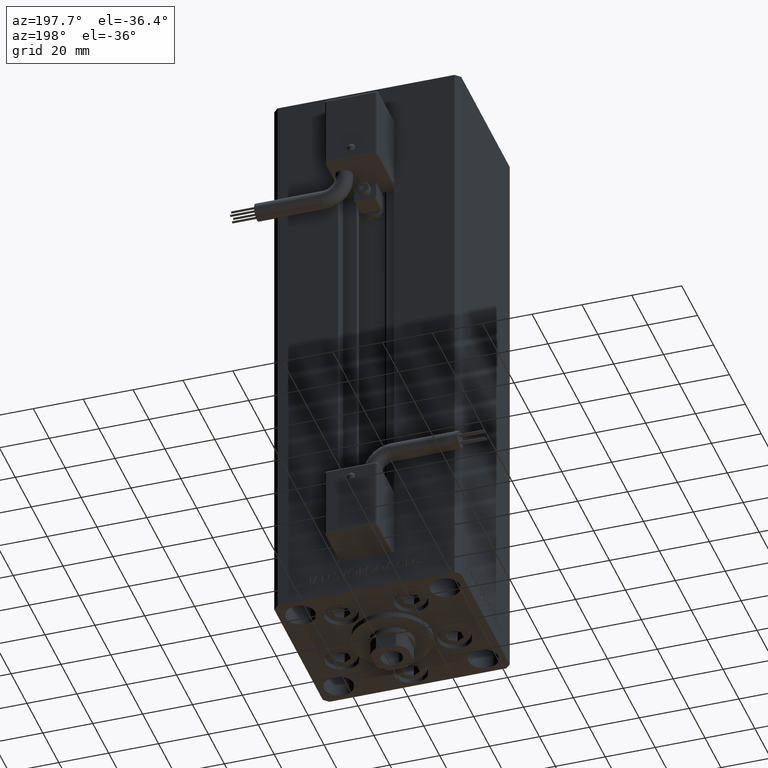
[diagram: clean part render]
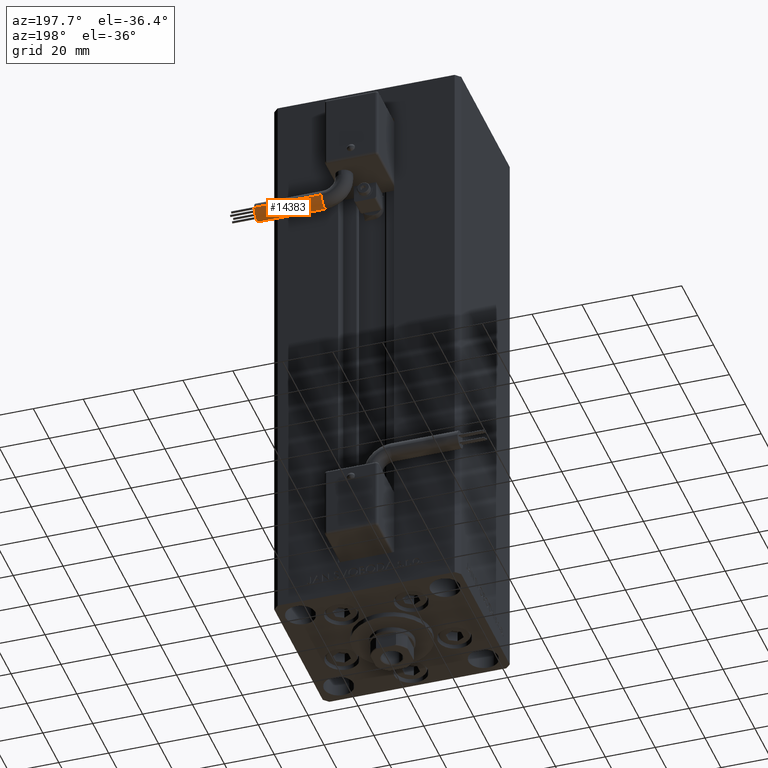
[diagram: same view with one face highlighted and labeled with its STEP entity id]
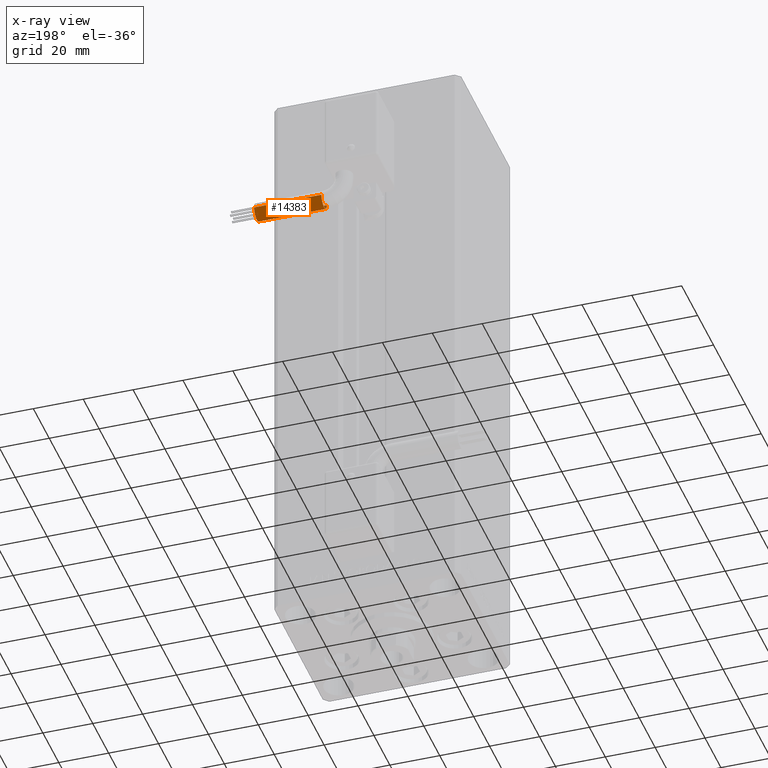
[diagram: x-ray of the same camera — body ghosted, the highlighted face saturated]
A machine part, auxiliary view. The second image highlights one B-rep face of the part: STEP entity #14383.
The next image is the same camera in x-ray: the body ghosted, the highlighted face saturated — about 0% of this face is hidden behind the body in this view.
In plain terms, the highlighted cylindrical surface (edge-blend (fillet) strip) has radius 3.5 mm, axis along (1, -0, 0).
Its self-contained STEP definition (entity closure, byte-faithful):
#903 = AXIS2_PLACEMENT_3D ( 'NONE', #41122, #33244, #33501 ) ;
#1173 = CYLINDRICAL_SURFACE ( 'NONE', #903, 3.500000000000003109 ) ;
#1744 = EDGE_CURVE ( 'NONE', #36859, #8098, #23438, .T. ) ;
#1753 = VERTEX_POINT ( 'NONE', #28463 ) ;
#3100 = CARTESIAN_POINT ( 'NONE',  ( 40.80000000000000426, 42.00000000000000000, -65.00000000000000000 ) ) ;
#3152 = EDGE_CURVE ( 'NONE', #8098, #49429, #31881, .T. ) ;
#8098 = VERTEX_POINT ( 'NONE', #14462 ) ;
#9558 = FACE_OUTER_BOUND ( 'NONE', #35245, .T. ) ;
#9949 = ORIENTED_EDGE ( 'NONE', *, *, #13145, .F. ) ;
#10799 = DIRECTION ( 'NONE',  ( 1.000000000000000000, -2.599999999999999847E-16, 2.220446049250000002E-16 ) ) ;
#13145 = EDGE_CURVE ( 'NONE', #1753, #24258, #27741, .T. ) ;
#13696 = CARTESIAN_POINT ( 'NONE',  ( 13.79999999999999716, 38.50000000000000000, -65.00000000000000000 ) ) ;
#13783 = VECTOR ( 'NONE', #10799, 1000.000000000000000 ) ;
#14274 = CARTESIAN_POINT ( 'NONE',  ( 40.80000000000000426, 45.50000000000000711, -65.00000000000000000 ) ) ;
#14383 = ADVANCED_FACE ( 'NONE', ( #9558 ), #1173, .T. ) ;
#14462 = CARTESIAN_POINT ( 'NONE',  ( 13.79999999999999893, 42.00000000000000000, -68.50000000000000000 ) ) ;
#16698 = ORIENTED_EDGE ( 'NONE', *, *, #3152, .T. ) ;
#19129 = DIRECTION ( 'NONE',  ( 0.000000000000000000, 0.000000000000000000, -1.000000000000000000 ) ) ;
#23438 = CIRCLE ( 'NONE', #30103, 3.500000000000003109 ) ;
#23721 = DIRECTION ( 'NONE',  ( 1.000000000000000000, -2.599999999999999847E-16, 2.220446049250000002E-16 ) ) ;
#24058 = CARTESIAN_POINT ( 'NONE',  ( 13.79999999999999893, 38.50000000000000000, -65.00000000000000000 ) ) ;
#24258 = VERTEX_POINT ( 'NONE', #14274 ) ;
#24988 = DIRECTION ( 'NONE',  ( 0.000000000000000000, 0.000000000000000000, -1.000000000000000000 ) ) ;
#27741 = CIRCLE ( 'NONE', #31069, 3.500000000000003109 ) ;
#28463 = CARTESIAN_POINT ( 'NONE',  ( 40.80000000000000426, 38.50000000000000000, -65.00000000000000000 ) ) ;
#30103 = AXIS2_PLACEMENT_3D ( 'NONE', #31368, #47377, #35829 ) ;
#30738 = ORIENTED_EDGE ( 'NONE', *, *, #1744, .T. ) ;
#31069 = AXIS2_PLACEMENT_3D ( 'NONE', #3100, #47240, #19129 ) ;
#31368 = CARTESIAN_POINT ( 'NONE',  ( 13.79999999999999893, 42.00000000000000000, -65.00000000000000000 ) ) ;
#31881 = CIRCLE ( 'NONE', #34393, 3.500000000000003109 ) ;
#33244 = DIRECTION ( 'NONE',  ( 1.000000000000000000, -2.599999999999999847E-16, 2.220446049250000002E-16 ) ) ;
#33501 = DIRECTION ( 'NONE',  ( -4.956352788505158337E-16, -1.000000000000000000, 0.000000000000000000 ) ) ;
#34393 = AXIS2_PLACEMENT_3D ( 'NONE', #49392, #41775, #24988 ) ;
#35245 = EDGE_LOOP ( 'NONE', ( #30738, #16698, #36365, #9949, #48900 ) ) ;
#35829 = DIRECTION ( 'NONE',  ( 0.000000000000000000, 0.000000000000000000, -1.000000000000000000 ) ) ;
#35945 = EDGE_CURVE ( 'NONE', #49429, #24258, #39481, .T. ) ;
#36365 = ORIENTED_EDGE ( 'NONE', *, *, #35945, .T. ) ;
#36859 = VERTEX_POINT ( 'NONE', #24058 ) ;
#38055 = EDGE_CURVE ( 'NONE', #36859, #1753, #46547, .T. ) ;
#39481 = LINE ( 'NONE', #47878, #48978 ) ;
#41122 = CARTESIAN_POINT ( 'NONE',  ( 13.79999999999999893, 42.00000000000000000, -65.00000000000000000 ) ) ;
#41775 = DIRECTION ( 'NONE',  ( 1.000000000000000000, 0.000000000000000000, 2.220446049250000002E-16 ) ) ;
#46547 = LINE ( 'NONE', #13696, #13783 ) ;
#47240 = DIRECTION ( 'NONE',  ( 1.000000000000000000, 0.000000000000000000, 2.220446049250000002E-16 ) ) ;
#47377 = DIRECTION ( 'NONE',  ( 1.000000000000000000, 0.000000000000000000, 2.220446049250000002E-16 ) ) ;
#47878 = CARTESIAN_POINT ( 'NONE',  ( 13.80000000000000071, 45.50000000000000711, -65.00000000000000000 ) ) ;
#48368 = CARTESIAN_POINT ( 'NONE',  ( 13.79999999999999893, 45.50000000000000711, -65.00000000000000000 ) ) ;
#48900 = ORIENTED_EDGE ( 'NONE', *, *, #38055, .F. ) ;
#48978 = VECTOR ( 'NONE', #23721, 1000.000000000000000 ) ;
#49392 = CARTESIAN_POINT ( 'NONE',  ( 13.79999999999999893, 42.00000000000000000, -65.00000000000000000 ) ) ;
#49429 = VERTEX_POINT ( 'NONE', #48368 ) ;